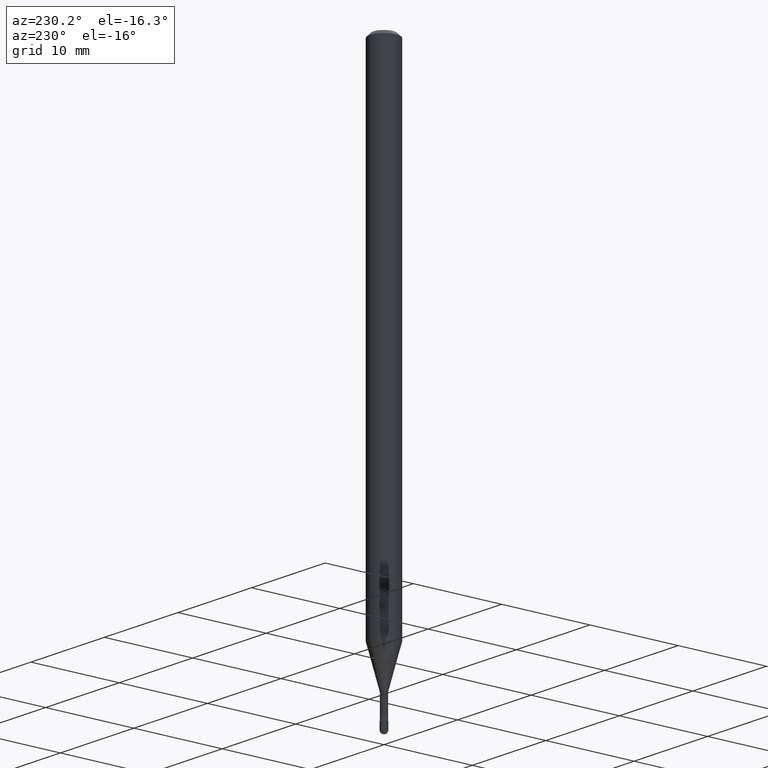
[diagram: clean part render]
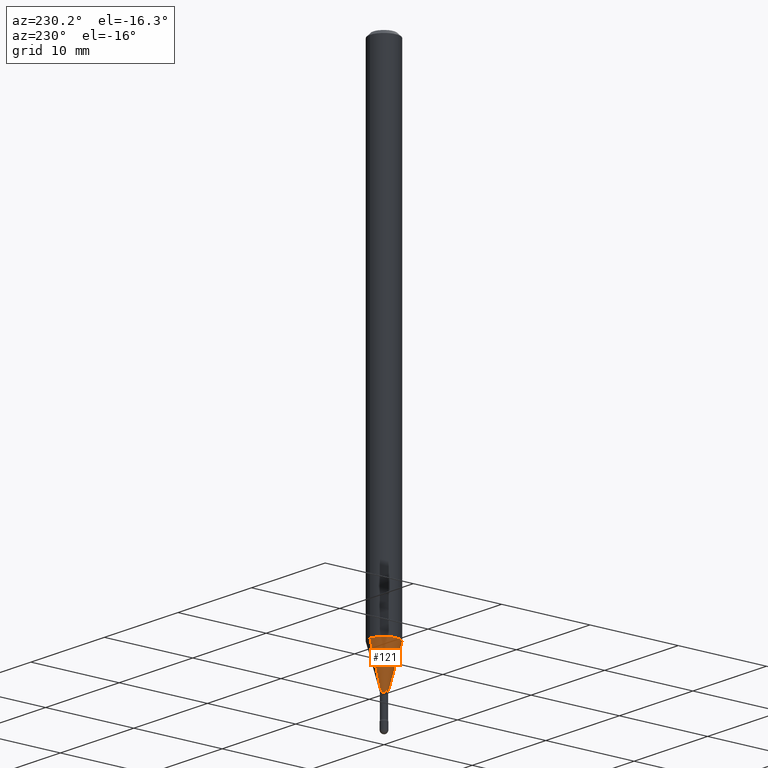
[diagram: same view with one face highlighted and labeled with its STEP entity id]
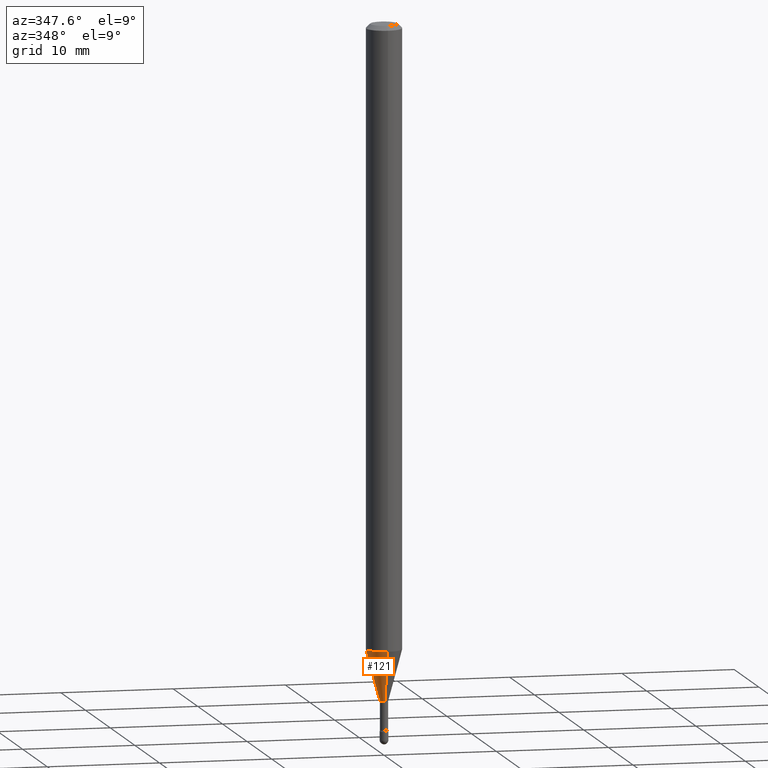
[diagram: same view with one face highlighted and labeled with its STEP entity id]
A machine part, auxiliary view. The second image highlights one B-rep face of the part: STEP entity #121.
A second angle (auxiliary view) of the same face is appended — the face is thin or edge-on in the first view.
In plain terms, the highlighted conical surface has half-angle 15 deg.
Its self-contained STEP definition (entity closure, byte-faithful):
#3 = DIRECTION ( 'NONE',  ( -2.445515325509068465E-29, 3.491414720523559495E-15, 1.000000000000000000 ) ) ;
#13 = CARTESIAN_POINT ( 'NONE',  ( 2.739537045417235021E-16, 0.01461111260565578496, -2.348092501787273356 ) ) ;
#24 = DIRECTION ( 'NONE',  ( -2.445515325509068465E-29, 3.491414720523559495E-15, 1.000000000000000000 ) ) ;
#27 = FACE_OUTER_BOUND ( 'NONE', #264, .T. ) ;
#40 = CARTESIAN_POINT ( 'NONE',  ( 4.440892098501154699E-16, 0.06249999999999240885, -2.169368740913667271 ) ) ;
#45 = VECTOR ( 'NONE', #85, 39.37007874015749564 ) ;
#57 = DIRECTION ( 'NONE',  ( -6.982962677686265922E-15, -1.000000000000000000, 0.000000000000000000 ) ) ;
#83 = ORIENTED_EDGE ( 'NONE', *, *, #254, .T. ) ;
#85 = DIRECTION ( 'NONE',  ( -1.807323732225328562E-15, -0.2588190451025179639, 0.9659258262890689783 ) ) ;
#121 = ADVANCED_FACE ( 'NONE', ( #27 ), #229, .T. ) ;
#126 = CARTESIAN_POINT ( 'NONE',  ( -1.020288540047655014E-16, -0.01461111260567218156, -2.348092501787273356 ) ) ;
#132 = ORIENTED_EDGE ( 'NONE', *, *, #172, .F. ) ;
#172 = EDGE_CURVE ( 'NONE', #298, #371, #269, .T. ) ;
#175 = LINE ( 'NONE', #215, #45 ) ;
#204 = DIRECTION ( 'NONE',  ( -6.982962677686265922E-15, -1.000000000000000000, 0.000000000000000000 ) ) ;
#206 = DIRECTION ( 'NONE',  ( -6.982962677686265922E-15, -1.000000000000000000, 4.370956789862821150E-15 ) ) ;
#215 = CARTESIAN_POINT ( 'NONE',  ( -1.020288540047655014E-16, -0.01461111260567218156, -2.348092501787273356 ) ) ;
#229 = CONICAL_SURFACE ( 'NONE', #302, 0.01461111260566398326, 0.2617993877991501295 ) ;
#238 = CARTESIAN_POINT ( 'NONE',  ( 5.742296198833706335E-29, -8.198164725891078954E-15, -2.348092501787273356 ) ) ;
#242 = VERTEX_POINT ( 'NONE', #126 ) ;
#254 = EDGE_CURVE ( 'NONE', #242, #371, #175, .T. ) ;
#264 = EDGE_LOOP ( 'NONE', ( #540, #341, #83, #132 ) ) ;
#269 = CIRCLE ( 'NONE', #433, 0.06250000000000000000 ) ;
#295 = CARTESIAN_POINT ( 'NONE',  ( -4.364351673553385199E-16, -0.06250000000000757727, -2.169368740913666826 ) ) ;
#298 = VERTEX_POINT ( 'NONE', #40 ) ;
#302 = AXIS2_PLACEMENT_3D ( 'NONE', #238, #370, #204 ) ;
#311 = EDGE_CURVE ( 'NONE', #502, #298, #432, .T. ) ;
#341 = ORIENTED_EDGE ( 'NONE', *, *, #529, .T. ) ;
#362 = VECTOR ( 'NONE', #553, 39.37007874015747433 ) ;
#369 = AXIS2_PLACEMENT_3D ( 'NONE', #443, #3, #57 ) ;
#370 = DIRECTION ( 'NONE',  ( -2.445515325509068465E-29, 3.491414720523559495E-15, 1.000000000000000000 ) ) ;
#371 = VERTEX_POINT ( 'NONE', #295 ) ;
#388 = CARTESIAN_POINT ( 'NONE',  ( 1.038181992333311399E-16, 0.01461111260565578496, -2.348092501787273356 ) ) ;
#417 = CARTESIAN_POINT ( 'NONE',  ( 5.305224502584683767E-29, -7.574165956269636631E-15, -2.169368740913666826 ) ) ;
#432 = LINE ( 'NONE', #388, #362 ) ;
#433 = AXIS2_PLACEMENT_3D ( 'NONE', #417, #24, #206 ) ;
#443 = CARTESIAN_POINT ( 'NONE',  ( 5.742296198833706335E-29, -8.198164725891078954E-15, -2.348092501787273356 ) ) ;
#502 = VERTEX_POINT ( 'NONE', #13 ) ;
#522 = CIRCLE ( 'NONE', #369, 0.01461111260566398326 ) ;
#529 = EDGE_CURVE ( 'NONE', #502, #242, #522, .T. ) ;
#540 = ORIENTED_EDGE ( 'NONE', *, *, #311, .F. ) ;
#553 = DIRECTION ( 'NONE',  ( 1.839019923739599526E-15, 0.2588190451025248473, 0.9659258262890673130 ) ) ;